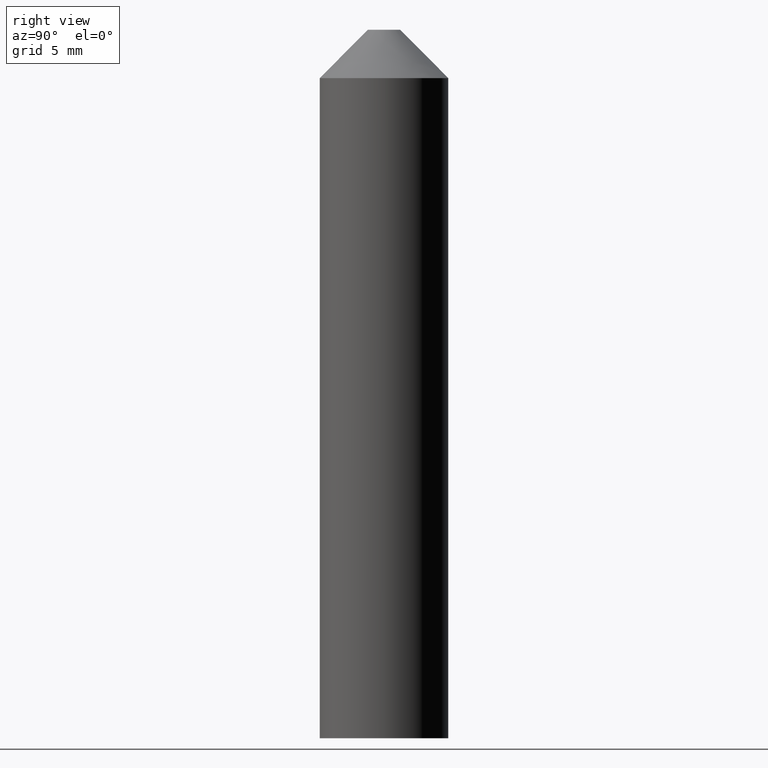
[diagram: clean part render]
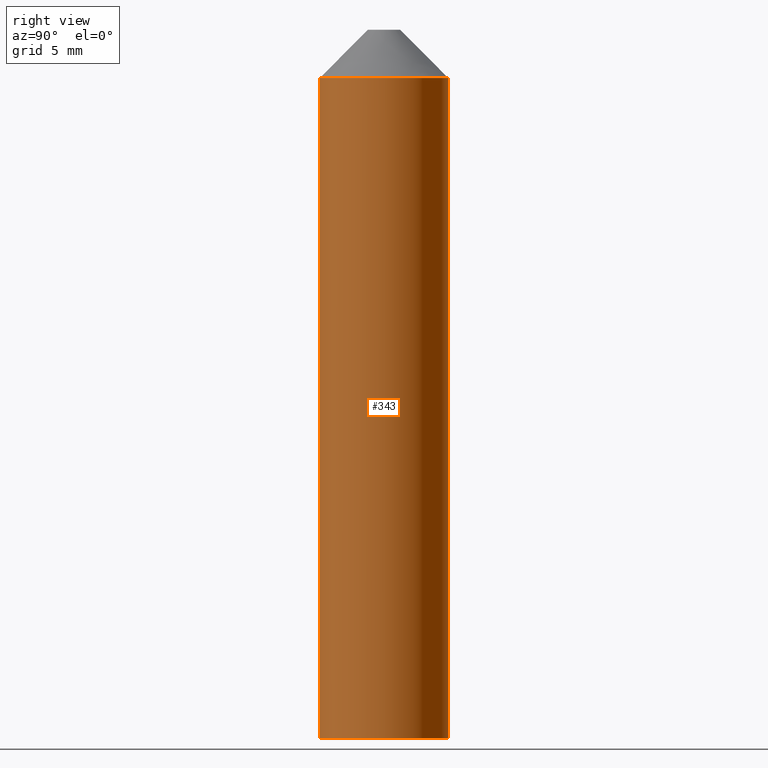
[diagram: same view with one face highlighted and labeled with its STEP entity id]
A machine part, right view. The second image highlights one B-rep face of the part: STEP entity #343.
In plain terms, the highlighted face is a freeform B-spline surface patch.
Its self-contained STEP definition (entity closure, byte-faithful):
#206=CARTESIAN_POINT('',(-0.244194158160723,3.992539193686165,1.110223E-015));
#207=VERTEX_POINT('',#206);
#221=CARTESIAN_POINT('',(4.0,0.0,0.0));
#222=VERTEX_POINT('',#221);
#223=CARTESIAN_POINT('',(-0.244194158160722,3.992539193686166,0.0));
#224=CARTESIAN_POINT('',(-0.122211053205033,4.000000000000001,0.0));
#225=CARTESIAN_POINT('',(0.0,4.0,0.0));
#226=CARTESIAN_POINT('',(4.000000000000000,4.000000000000000,0.0));
#227=CARTESIAN_POINT('',(4.0,0.0,0.0));
#235=(BOUNDED_CURVE()B_SPLINE_CURVE(2,(#223,#224,#225,#226,#227),.UNSPECIFIED.,.F.,.U.)B_SPLINE_CURVE_WITH_KNOTS((3,2,3),(0.239332962241048,0.250000000000000,0.500000000000000),.UNSPECIFIED.)CURVE()GEOMETRIC_REPRESENTATION_ITEM()RATIONAL_B_SPLINE_CURVE((0.976072041671229,0.987502787902304,1.0,0.707106781186548,1.0))REPRESENTATION_ITEM(''));
#236=EDGE_CURVE('',#207,#222,#235,.T.);
#238=CARTESIAN_POINT('',(0.244194158160722,-3.992539193686165,1.110223E-015));
#239=VERTEX_POINT('',#238);
#240=CARTESIAN_POINT('',(4.0,0.0,0.0));
#241=CARTESIAN_POINT('',(4.000000000000000,-3.762824267602673,0.0));
#242=CARTESIAN_POINT('',(0.244194158160721,-3.992539193686166,0.0));
#250=(BOUNDED_CURVE()B_SPLINE_CURVE(2,(#240,#241,#242),.UNSPECIFIED.,.F.,.U.)B_SPLINE_CURVE_WITH_KNOTS((3,3),(0.500000000000000,0.739332962241048),.UNSPECIFIED.)CURVE()GEOMETRIC_REPRESENTATION_ITEM()RATIONAL_B_SPLINE_CURVE((1.0,0.719603993284244,0.976072041671229))REPRESENTATION_ITEM(''));
#251=EDGE_CURVE('',#222,#239,#250,.T.);
#277=CARTESIAN_POINT('',(-0.244194158139428,3.992539193687467,42.025000000000013));
#278=CARTESIAN_POINT('',(3.748345035548039,4.236733351826894,42.025000000000013));
#279=CARTESIAN_POINT('',(3.992539193687467,0.244194158139428,42.025000000000013));
#280=CARTESIAN_POINT('',(4.236733351826894,-3.748345035548039,42.025000000000013));
#281=CARTESIAN_POINT('',(0.244194158139428,-3.992539193687467,42.025000000000013));
#282=CARTESIAN_POINT('',(-0.244194158139428,3.992539193687467,-1.050625000000004));
#283=CARTESIAN_POINT('',(3.748345035548039,4.236733351826894,-1.050625000000004));
#284=CARTESIAN_POINT('',(3.992539193687467,0.244194158139428,-1.050625000000004));
#285=CARTESIAN_POINT('',(4.236733351826894,-3.748345035548039,-1.050625000000004));
#286=CARTESIAN_POINT('',(0.244194158139428,-3.992539193687467,-1.050625000000004));
#294=(BOUNDED_SURFACE()B_SPLINE_SURFACE(2,1,((#277,#282),(#278,#283),(#279,#284),(#280,#285),(#281,#286)),.UNSPECIFIED.,.F.,.F.,.U.)B_SPLINE_SURFACE_WITH_KNOTS((3,2,3),(2,2),(0.0,6.627416997969518,13.254833995939039),(0.0,43.075625000000009),.UNSPECIFIED.)GEOMETRIC_REPRESENTATION_ITEM()RATIONAL_B_SPLINE_SURFACE(((1.0,1.0),(0.707106781186548,0.707106781186548),(1.0,1.0),(0.707106781186548,0.707106781186548),(1.0,1.0)))REPRESENTATION_ITEM('')SURFACE());
#295=CARTESIAN_POINT('',(-0.244194158174903,3.992539193689956,40.999999999990713));
#296=VERTEX_POINT('',#295);
#297=CARTESIAN_POINT('',(-0.244194158174903,3.992539193689956,40.999999999990713));
#298=CARTESIAN_POINT('',(-0.244194158160723,3.992539193686165,1.110223E-015));
#299=QUASI_UNIFORM_CURVE('',1,(#297,#298),.UNSPECIFIED.,.F.,.U.);
#300=EDGE_CURVE('',#296,#207,#299,.T.);
#301=ORIENTED_EDGE('',*,*,#300,.F.);
#302=CARTESIAN_POINT('',(4.0,0.0,41.0));
#303=VERTEX_POINT('',#302);
#304=CARTESIAN_POINT('',(-0.244194158174903,3.992539193689956,40.999999999990706));
#305=CARTESIAN_POINT('',(-0.122211053195240,4.000000000006696,40.999999999990834));
#306=CARTESIAN_POINT('',(3.387205E-011,4.000000000006592,40.999999999990983));
#307=CARTESIAN_POINT('',(4.000000000016419,4.000000000003194,40.999999999995630));
#308=CARTESIAN_POINT('',(4.0,0.0,41.0));
#316=(BOUNDED_CURVE()B_SPLINE_CURVE(2,(#304,#305,#306,#307,#308),.UNSPECIFIED.,.F.,.U.)B_SPLINE_CURVE_WITH_KNOTS((3,2,3),(0.239332962238927,0.250000000000000,0.500000000000000),.UNSPECIFIED.)CURVE()GEOMETRIC_REPRESENTATION_ITEM()RATIONAL_B_SPLINE_CURVE((0.976072041666683,0.987502787899818,1.0,0.707106781186548,1.0))REPRESENTATION_ITEM(''));
#317=EDGE_CURVE('',#296,#303,#316,.T.);
#318=ORIENTED_EDGE('',*,*,#317,.T.);
#319=CARTESIAN_POINT('',(0.244194158174903,-3.992539193689955,40.999999999990713));
#320=VERTEX_POINT('',#319);
#321=CARTESIAN_POINT('',(4.0,0.0,41.0));
#322=CARTESIAN_POINT('',(3.999999999982546,-3.762824267559718,40.999999999995346));
#323=CARTESIAN_POINT('',(0.244194158174903,-3.992539193689955,40.999999999990713));
#331=(BOUNDED_CURVE()B_SPLINE_CURVE(2,(#321,#322,#323),.UNSPECIFIED.,.F.,.U.)B_SPLINE_CURVE_WITH_KNOTS((3,3),(0.500000000000000,0.739332962238927),.UNSPECIFIED.)CURVE()GEOMETRIC_REPRESENTATION_ITEM()RATIONAL_B_SPLINE_CURVE((1.0,0.719603993286729,0.976072041666683))REPRESENTATION_ITEM(''));
#332=EDGE_CURVE('',#303,#320,#331,.T.);
#333=ORIENTED_EDGE('',*,*,#332,.T.);
#334=CARTESIAN_POINT('',(0.244194158174903,-3.992539193689955,40.999999999990713));
#335=CARTESIAN_POINT('',(0.244194158160722,-3.992539193686165,1.110223E-015));
#336=QUASI_UNIFORM_CURVE('',1,(#334,#335),.UNSPECIFIED.,.F.,.U.);
#337=EDGE_CURVE('',#320,#239,#336,.T.);
#338=ORIENTED_EDGE('',*,*,#337,.T.);
#339=ORIENTED_EDGE('',*,*,#251,.F.);
#340=ORIENTED_EDGE('',*,*,#236,.F.);
#341=EDGE_LOOP('',(#301,#318,#333,#338,#339,#340));
#342=FACE_OUTER_BOUND('',#341,.T.);
#343=ADVANCED_FACE('',(#342),#294,.T.);